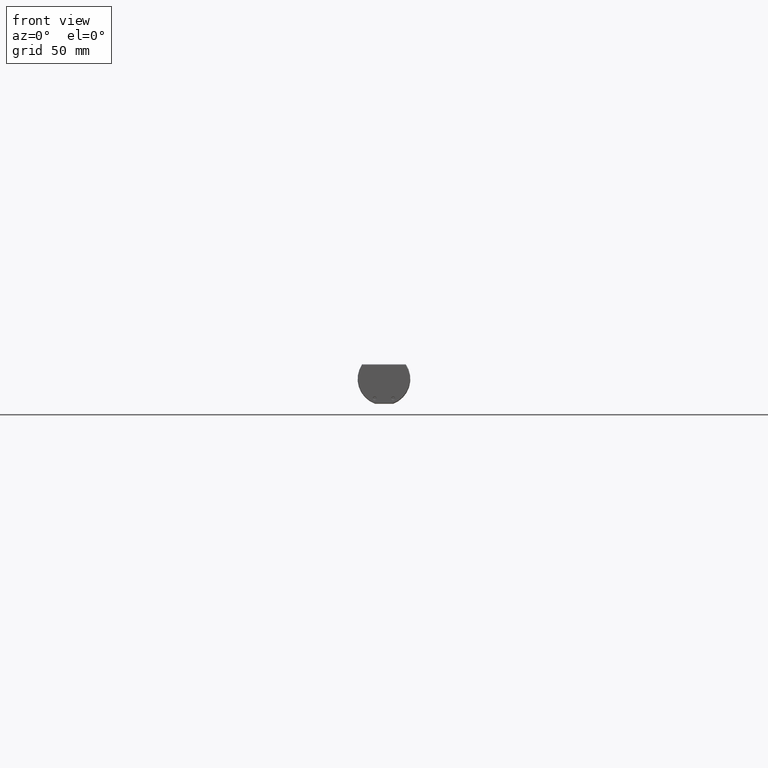
[diagram: clean part render]
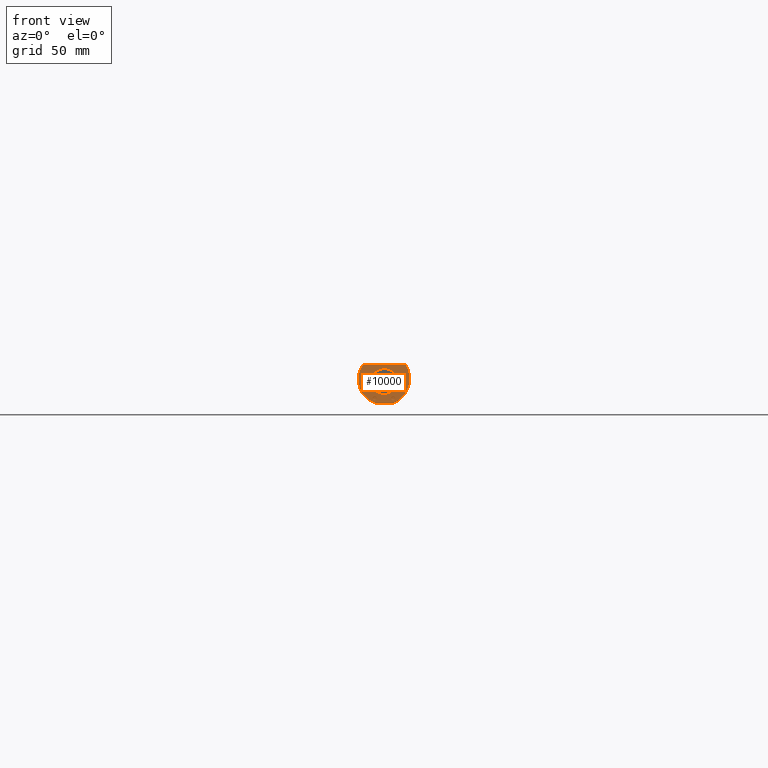
[diagram: same view with one face highlighted and labeled with its STEP entity id]
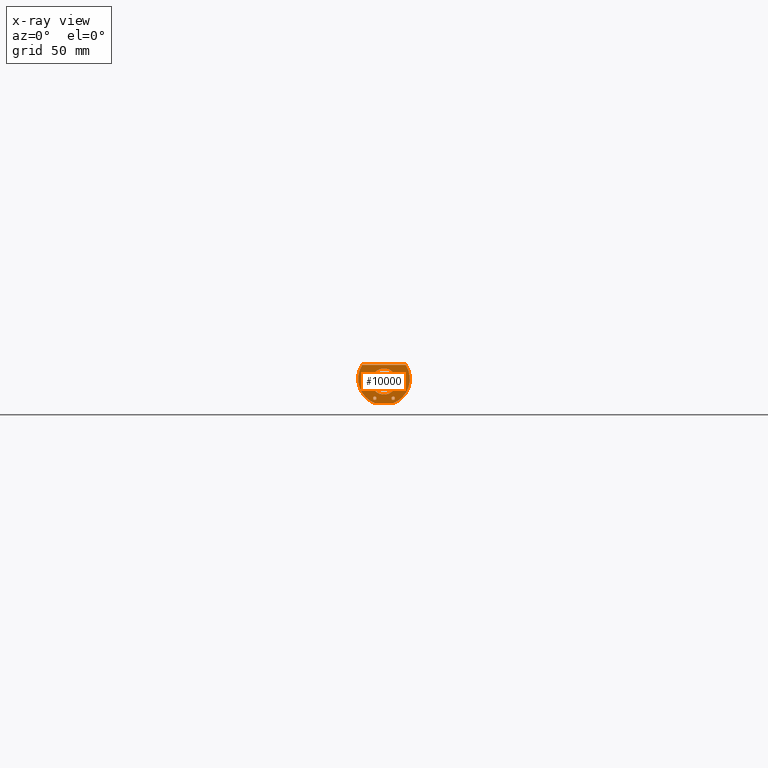
[diagram: x-ray of the same camera — body ghosted, the highlighted face saturated]
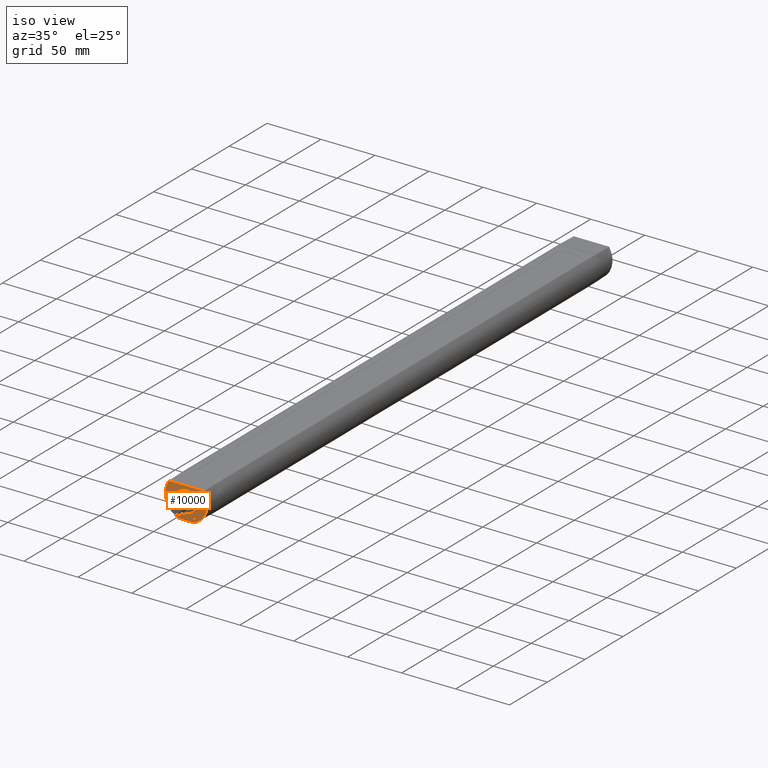
[diagram: same view with one face highlighted and labeled with its STEP entity id]
A machine part, front view. The second image highlights one B-rep face of the part: STEP entity #10000.
The next image is the same camera in x-ray: the body ghosted, the highlighted face saturated — about 0% of this face is hidden behind the body in this view.
A second angle (iso view) of the same face is appended — the face is thin or edge-on in the first view.
In plain terms, the highlighted planar face has unit normal (-0, -1, 0).
Its self-contained STEP definition (entity closure, byte-faithful):
#8040=CARTESIAN_POINT('',(-9.875,-1.9,-93.));
#8050=VERTEX_POINT('',#8040);
#8130=CARTESIAN_POINT('',(9.87499999999999,-1.9,-93.));
#8140=VERTEX_POINT('',#8130);
#8170=CARTESIAN_POINT('',(-4.6594672564737E-15,-1.9,-93.));
#8180=DIRECTION('',(0.,0.,1.));
#8190=DIRECTION('',(-1.,0.,0.));
#8200=AXIS2_PLACEMENT_3D('',#8170,#8180,#8190);
#8210=CIRCLE('',#8200,9.875);
#8220=EDGE_CURVE('',#8140,#8050,#8210,.T.);
#9200=CARTESIAN_POINT('',(35.7703448023118,-21.2171073705584,-93.));
#9210=DIRECTION('',(0.,0.,-1.));
#9220=DIRECTION('',(-1.,0.,0.));
#9230=AXIS2_PLACEMENT_3D('',#9200,#9210,#9220);
#9240=PLANE('',#9230);
#9250=CARTESIAN_POINT('',(0.,10.7600894754653,-93.));
#9260=DIRECTION('',(-1.,0.,0.));
#9270=VECTOR('',#9260,1.);
#9280=LINE('',#9250,#9270);
#9290=CARTESIAN_POINT('',(16.3345515631189,10.7600894754653,-93.));
#9300=VERTEX_POINT('',#9290);
#9310=CARTESIAN_POINT('',(-16.3345515631189,10.7600894754653,-93.));
#9320=VERTEX_POINT('',#9310);
#9330=EDGE_CURVE('',#9300,#9320,#9280,.T.);
#9340=ORIENTED_EDGE('',*,*,#9330,.F.);
#9350=CARTESIAN_POINT('',(2.46912516096858E-14,6.25447521409836E-14,-93.
));
#9360=DIRECTION('',(-4.10824459617193E-15,-8.62636167101549E-15,-1.));
#9370=DIRECTION('',(0.,1.,-8.62636167101549E-15));
#9380=AXIS2_PLACEMENT_3D('',#9350,#9360,#9370);
#9390=CIRCLE('',#9380,19.5600894754653);
#9400=CARTESIAN_POINT('',(-6.88024154290118,-18.3100894754653,-93.));
#9410=VERTEX_POINT('',#9400);
#9420=EDGE_CURVE('',#9410,#9320,#9390,.T.);
#9430=ORIENTED_EDGE('',*,*,#9420,.T.);
#9440=CARTESIAN_POINT('',(0.,-18.3100894754653,-93.));
#9450=DIRECTION('',(1.,0.,0.));
#9460=VECTOR('',#9450,1.);
#9470=LINE('',#9440,#9460);
#9480=CARTESIAN_POINT('',(6.88024154290118,-18.3100894754653,-93.));
#9490=VERTEX_POINT('',#9480);
#9500=EDGE_CURVE('',#9410,#9490,#9470,.T.);
#9510=ORIENTED_EDGE('',*,*,#9500,.F.);
#9520=CARTESIAN_POINT('',(4.26570789520023E-14,-5.6579239104059E-15,
-92.9999999999999));
#9530=DIRECTION('',(5.35723590395572E-16,-7.06812270810495E-16,-1.));
#9540=DIRECTION('',(0.,1.,-7.06812270810495E-16));
#9550=AXIS2_PLACEMENT_3D('',#9520,#9530,#9540);
#9560=CIRCLE('',#9550,19.5600894754653);
#9570=EDGE_CURVE('',#9300,#9490,#9560,.T.);
#9580=ORIENTED_EDGE('',*,*,#9570,.T.);
#9590=EDGE_LOOP('',(#9580,#9510,#9430,#9340));
#9600=FACE_OUTER_BOUND('',#9590,.T.);
#9610=CARTESIAN_POINT('',(-7.00000000000036,-14.6000894754646,
-92.9999999999989));
#9620=DIRECTION('',(-2.00931613399223E-14,3.67878088453054E-14,-1.));
#9630=DIRECTION('',(0.,-1.,-3.67878088453054E-14));
#9640=AXIS2_PLACEMENT_3D('',#9610,#9620,#9630);
#9650=CIRCLE('',#9640,1.39999999999956);
#9660=CARTESIAN_POINT('',(-5.60000000000043,-14.6000894754651,
-92.9999999999989));
#9670=VERTEX_POINT('',#9660);
#9680=CARTESIAN_POINT('',(-7.00000000000036,-16.0000894754642,
-92.999999999999));
#9690=VERTEX_POINT('',#9680);
#9700=EDGE_CURVE('',#9670,#9690,#9650,.T.);
#9710=ORIENTED_EDGE('',*,*,#9700,.F.);
#9720=CARTESIAN_POINT('',(-7.00000000000036,-13.2000894754651,
-92.9999999999988));
#9730=VERTEX_POINT('',#9720);
#9740=EDGE_CURVE('',#9690,#9730,#9650,.T.);
#9750=ORIENTED_EDGE('',*,*,#9740,.F.);
#9760=EDGE_CURVE('',#9730,#9670,#9650,.T.);
#9770=ORIENTED_EDGE('',*,*,#9760,.F.);
#9780=EDGE_LOOP('',(#9770,#9750,#9710));
#9790=FACE_BOUND('',#9780,.T.);
#9800=EDGE_CURVE('',#8050,#8140,#8210,.T.);
#9810=ORIENTED_EDGE('',*,*,#9800,.T.);
#9820=ORIENTED_EDGE('',*,*,#8220,.T.);
#9830=EDGE_LOOP('',(#9820,#9810));
#9840=FACE_BOUND('',#9830,.T.);
#9850=CARTESIAN_POINT('',(6.99999999999983,-14.6000894754646,
-92.9999999999995));
#9860=DIRECTION('',(-9.9969270587588E-15,3.69422867469365E-14,-1.));
#9870=DIRECTION('',(0.,-1.,-3.69422867469365E-14));
#9880=AXIS2_PLACEMENT_3D('',#9850,#9860,#9870);
#9890=CIRCLE('',#9880,1.40000000000025);
#9900=CARTESIAN_POINT('',(6.99999999999983,-13.2000894754644,
-92.9999999999998));
#9910=VERTEX_POINT('',#9900);
#9920=CARTESIAN_POINT('',(6.99999999999983,-16.0000894754649,
-92.9999999999995));
#9930=VERTEX_POINT('',#9920);
#9940=EDGE_CURVE('',#9910,#9930,#9890,.T.);
#9950=ORIENTED_EDGE('',*,*,#9940,.F.);
#9960=EDGE_CURVE('',#9930,#9910,#9890,.T.);
#9970=ORIENTED_EDGE('',*,*,#9960,.F.);
#9980=EDGE_LOOP('',(#9970,#9950));
#9990=FACE_BOUND('',#9980,.T.);
#10000=ADVANCED_FACE('',(#9600,#9790,#9840,#9990),#9240,.T.);